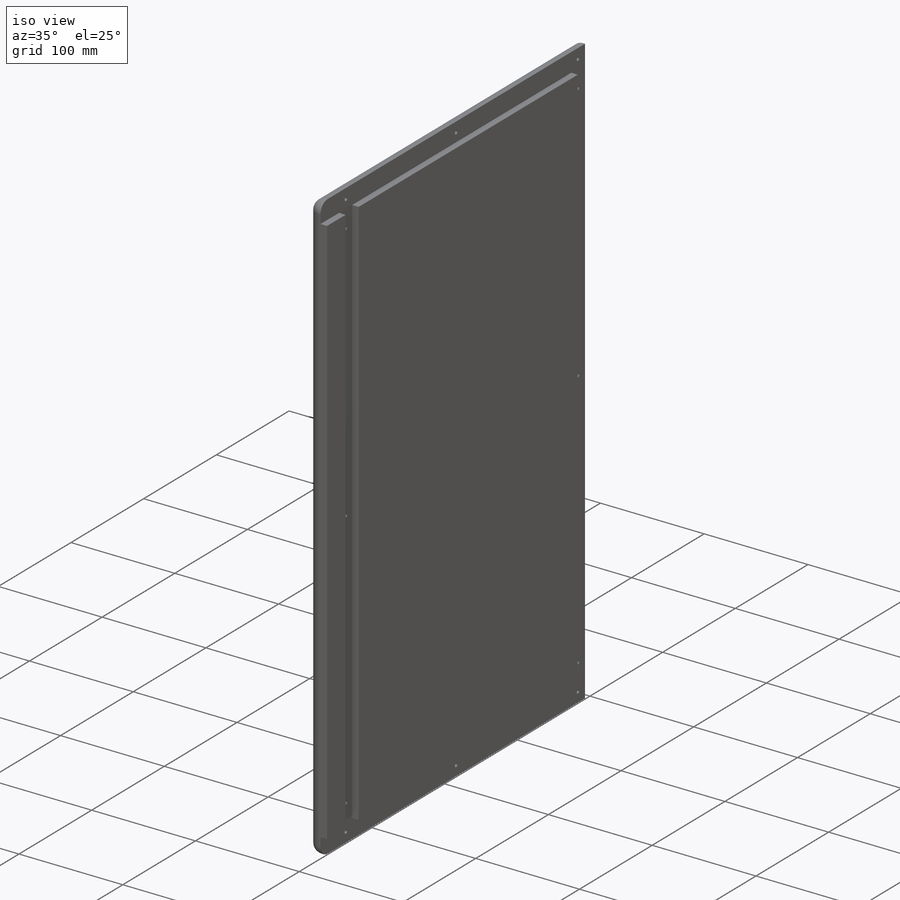
[diagram: iso view]
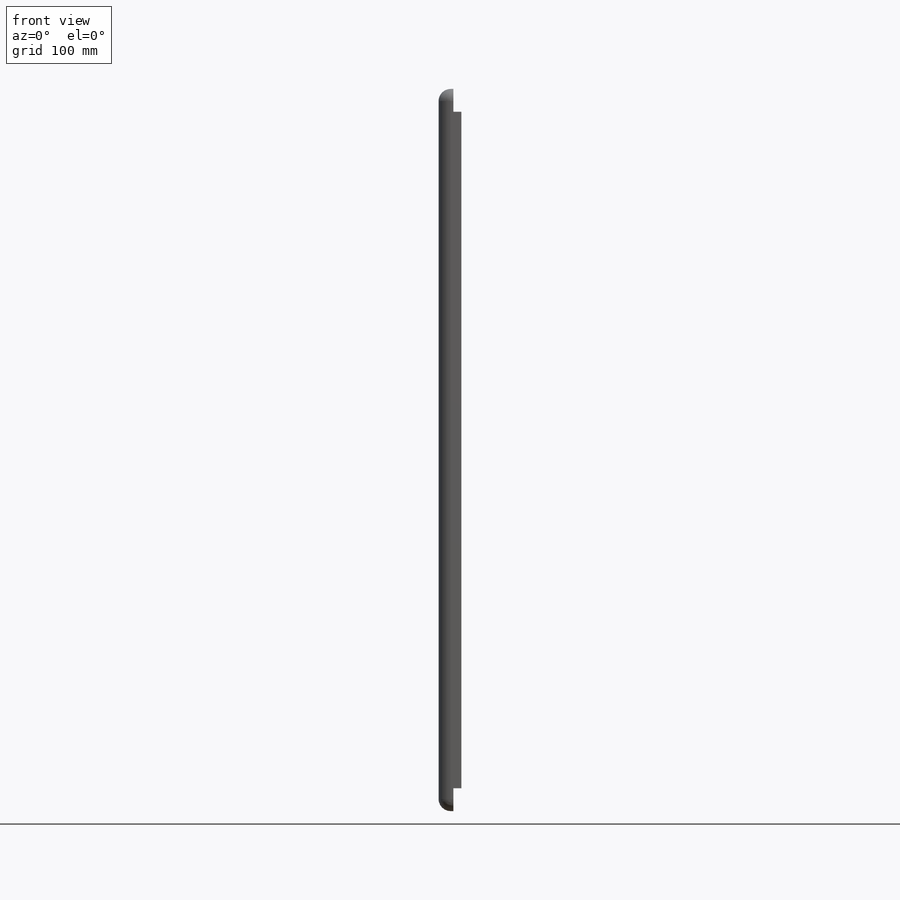
[diagram: front view]
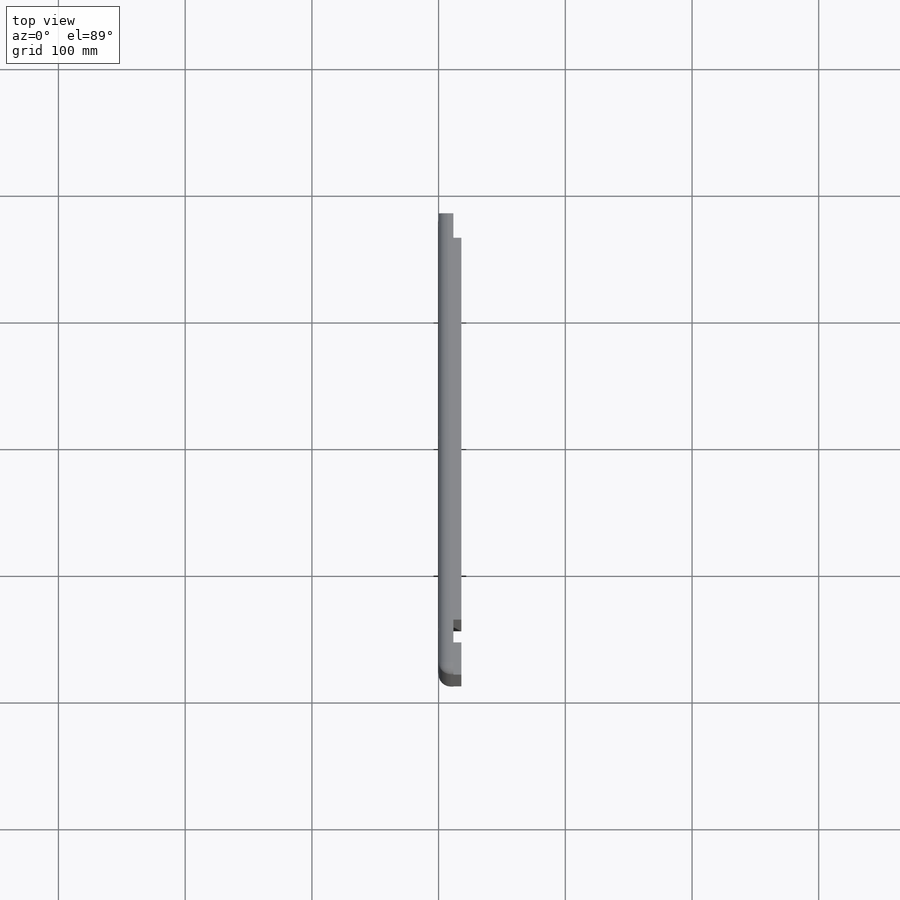
[diagram: top view]
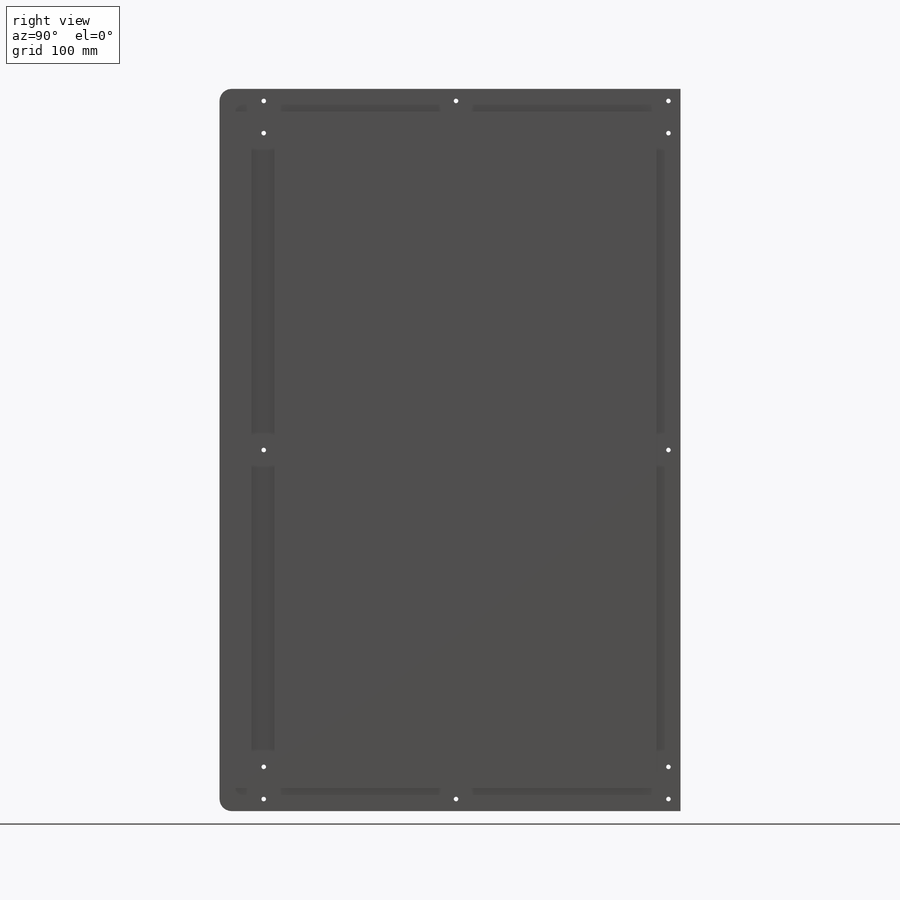
[diagram: right view]
SOLIDWORKS PART (.sldprt)
format: sldprt  version: not decoded by parser v0  size: 302,080 bytes
history: native  units: mm
features: sketch x7, cut_extrude x5, fillet x2, material x1, extrude x1 (+13 scaffold rows collapsed)
feature tree (29):
  scaffold x13  (default folders/planes/origin — collapsed)
  material  "Material <not specified>"
  sketch  "Sketch1"  dims[D1=376.55mm D2=570.0mm]
  extrude  "Boss-Extrude1"  Depth=18mm
  sketch  "Sketch5"  dims[D1=18.0mm D2=38.1mm D3=6.35mm D4=6.35mm]
  cut_extrude  "Cut-Extrude3"  Depth=6.35mm
  sketch  "Sketch6"  dims[D1=12.7mm D2=6.35mm D3=6.35mm]
  sketch  "Sketch7"  dims[D1=18.0mm D2=18.0mm]
  cut_extrude  "Cut-Extrude4"  Depth=6.35mm
  fillet  "Fillet1"  Radius=9.525mm
  sketch  "Sketch9"  dims[D1=19.05mm]
  cut_extrude  "Cut-Extrude6"  [1 undecoded]
  sketch  "Sketch10"  dims[D1=12.7mm]
  cut_extrude  "Cut-Extrude7"  [1 undecoded]
  fillet  "Fillet2"  Radius=9.525mm
  sketch  "Sketch11"  dims[D6=~3.571875mm D1=9.525mm D2=9.525mm D3=9.525mm D4=9.525mm D5=25.4mm D7=25.4mm]
  cut_extrude  "Cut-Extrude8"  [1 undecoded]
decode coverage: 12 of 15 modeling features carry decoded parameters
note: ~ marks probable driven/reference dimensions
note: 3 parameter values undecoded
summary: no parameter record found for 3 features
note: suppression state not decoded; provenance and decode notes live in map.json
